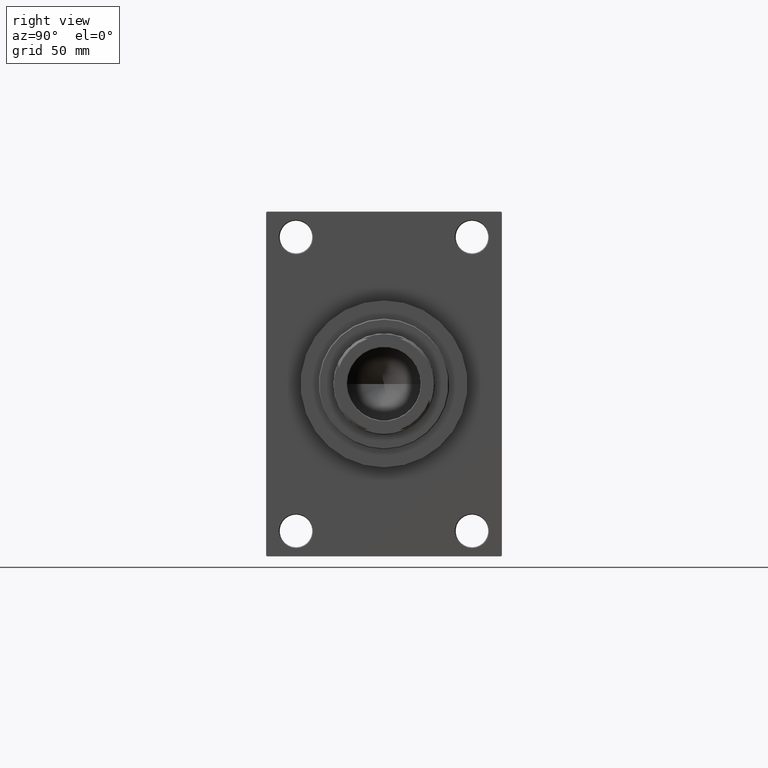
[diagram: clean part render]
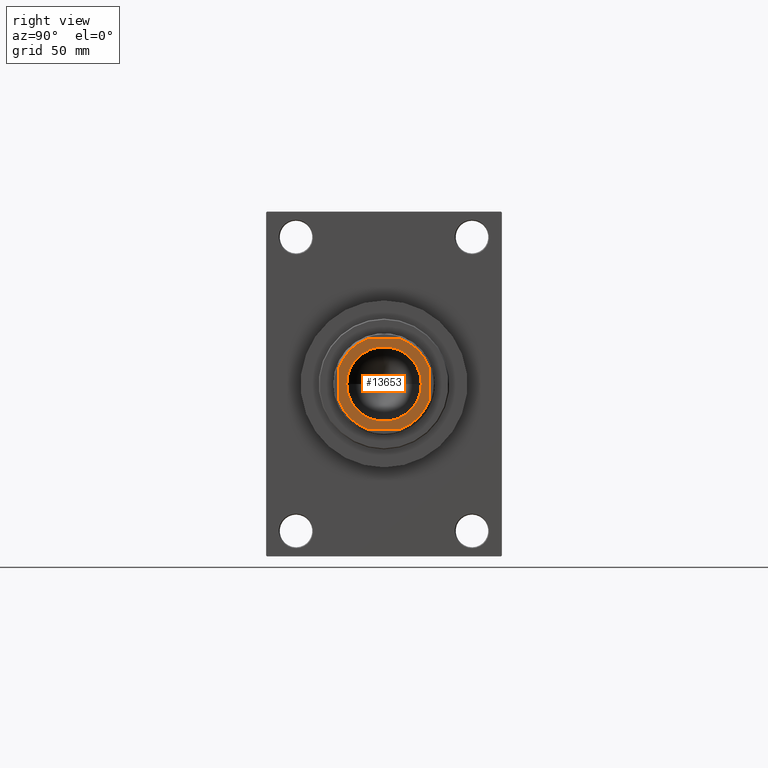
[diagram: same view with one face highlighted and labeled with its STEP entity id]
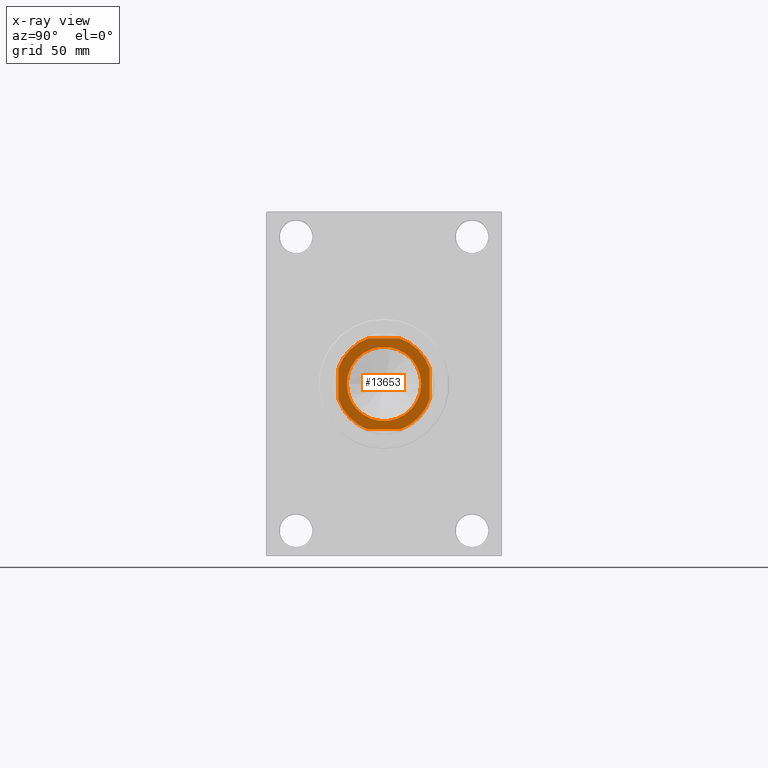
[diagram: x-ray of the same camera — body ghosted, the highlighted face saturated]
A machine part, right view. The second image highlights one B-rep face of the part: STEP entity #13653.
The next image is the same camera in x-ray: the body ghosted, the highlighted face saturated — about 0% of this face is hidden behind the body in this view.
In plain terms, the highlighted planar face has unit normal (1, 0, 0).
Its self-contained STEP definition (entity closure, byte-faithful):
#1585 = AXIS2_PLACEMENT_3D ( 'NONE', #1966, #1735, #16226 ) ;
#1735 = DIRECTION ( 'NONE',  ( -0.000000000000000000, 0.000000000000000000, 1.000000000000000000 ) ) ;
#1966 = CARTESIAN_POINT ( 'NONE',  ( 0.000000000000000000, 0.000000000000000000, 266.0000000000000000 ) ) ;
#2170 = AXIS2_PLACEMENT_3D ( 'NONE', #45956, #31232, #19672 ) ;
#2362 = EDGE_CURVE ( 'NONE', #45602, #10507, #44390, .T. ) ;
#2480 = EDGE_LOOP ( 'NONE', ( #21688, #21256 ) ) ;
#4115 = DIRECTION ( 'NONE',  ( -0.000000000000000000, 0.000000000000000000, 1.000000000000000000 ) ) ;
#4510 = CARTESIAN_POINT ( 'NONE',  ( 0.000000000000000000, 0.000000000000000000, 266.0000000000000000 ) ) ;
#5123 = FACE_BOUND ( 'NONE', #2480, .T. ) ;
#6009 = VERTEX_POINT ( 'NONE', #11253 ) ;
#6090 = CARTESIAN_POINT ( 'NONE',  ( -20.54999999999998650, 2.516649172247808793E-15, 266.0000000000000000 ) ) ;
#6460 = LINE ( 'NONE', #21421, #17349 ) ;
#6505 = CIRCLE ( 'NONE', #33477, 20.54999999999998650 ) ;
#6943 = DIRECTION ( 'NONE',  ( -1.000000000000000000, -0.000000000000000000, -0.000000000000000000 ) ) ;
#7085 = DIRECTION ( 'NONE',  ( 1.000000000000000000, 0.000000000000000000, 0.000000000000000000 ) ) ;
#7415 = VERTEX_POINT ( 'NONE', #23513 ) ;
#7453 = CARTESIAN_POINT ( 'NONE',  ( 0.000000000000000000, 0.000000000000000000, 266.0000000000000000 ) ) ;
#7748 = CARTESIAN_POINT ( 'NONE',  ( 0.000000000000000000, 0.000000000000000000, 266.0000000000000000 ) ) ;
#8834 = DIRECTION ( 'NONE',  ( 1.000000000000000000, 0.000000000000000000, 0.000000000000000000 ) ) ;
#8979 = FACE_OUTER_BOUND ( 'NONE', #24038, .T. ) ;
#10406 = DIRECTION ( 'NONE',  ( -0.000000000000000000, 0.000000000000000000, 1.000000000000000000 ) ) ;
#10507 = VERTEX_POINT ( 'NONE', #26362 ) ;
#11253 = CARTESIAN_POINT ( 'NONE',  ( 8.789197915623537583, -25.00000000000000000, 266.0000000000000000 ) ) ;
#11924 = EDGE_CURVE ( 'NONE', #7415, #40847, #31605, .T. ) ;
#12347 = VERTEX_POINT ( 'NONE', #18252 ) ;
#12562 = CIRCLE ( 'NONE', #41857, 20.54999999999998650 ) ;
#13653 = ADVANCED_FACE ( 'NONE', ( #5123, #8979 ), #20329, .T. ) ;
#13657 = ORIENTED_EDGE ( 'NONE', *, *, #18184, .T. ) ;
#14555 = DIRECTION ( 'NONE',  ( 0.000000000000000000, -0.000000000000000000, -1.000000000000000000 ) ) ;
#14576 = ORIENTED_EDGE ( 'NONE', *, *, #2362, .T. ) ;
#15614 = DIRECTION ( 'NONE',  ( 1.000000000000000000, 0.000000000000000000, 0.000000000000000000 ) ) ;
#16226 = DIRECTION ( 'NONE',  ( 1.000000000000000000, 0.000000000000000000, 0.000000000000000000 ) ) ;
#17349 = VECTOR ( 'NONE', #6943, 1000.000000000000000 ) ;
#17879 = ORIENTED_EDGE ( 'NONE', *, *, #46018, .T. ) ;
#18184 = EDGE_CURVE ( 'NONE', #27210, #45602, #41793, .T. ) ;
#18252 = CARTESIAN_POINT ( 'NONE',  ( 20.54999999999998650, 0.000000000000000000, 266.0000000000000000 ) ) ;
#19042 = DIRECTION ( 'NONE',  ( 1.387778780781445676E-16, -1.000000000000000000, 0.000000000000000000 ) ) ;
#19289 = CARTESIAN_POINT ( 'NONE',  ( -25.00000000000000000, 25.00000000000000000, 266.0000000000000000 ) ) ;
#19322 = EDGE_CURVE ( 'NONE', #21312, #6009, #31732, .T. ) ;
#19644 = CARTESIAN_POINT ( 'NONE',  ( -8.789197915623409685, 25.00000000000000000, 266.0000000000000000 ) ) ;
#19672 = DIRECTION ( 'NONE',  ( 1.000000000000000000, 0.000000000000000000, 0.000000000000000000 ) ) ;
#20167 = CARTESIAN_POINT ( 'NONE',  ( -24.99999999999999289, -25.00000000000000000, 266.0000000000000000 ) ) ;
#20329 = PLANE ( 'NONE',  #1585 ) ;
#20744 = CARTESIAN_POINT ( 'NONE',  ( 25.00000000000000000, 25.00000000000000000, 266.0000000000000000 ) ) ;
#20810 = CARTESIAN_POINT ( 'NONE',  ( 25.00000000000000355, 8.789197915623548241, 266.0000000000000000 ) ) ;
#20894 = VERTEX_POINT ( 'NONE', #25570 ) ;
#21256 = ORIENTED_EDGE ( 'NONE', *, *, #32139, .T. ) ;
#21312 = VERTEX_POINT ( 'NONE', #21397 ) ;
#21397 = CARTESIAN_POINT ( 'NONE',  ( -8.789197915623610413, -25.00000000000000000, 266.0000000000000000 ) ) ;
#21421 = CARTESIAN_POINT ( 'NONE',  ( -25.00000000000000000, 25.00000000000000000, 266.0000000000000000 ) ) ;
#21483 = AXIS2_PLACEMENT_3D ( 'NONE', #7748, #4115, #40097 ) ;
#21688 = ORIENTED_EDGE ( 'NONE', *, *, #25533, .T. ) ;
#21755 = DIRECTION ( 'NONE',  ( 1.000000000000000000, 0.000000000000000000, 0.000000000000000000 ) ) ;
#23513 = CARTESIAN_POINT ( 'NONE',  ( 25.00000000000000355, -8.789197915623526924, 266.0000000000000000 ) ) ;
#24038 = EDGE_LOOP ( 'NONE', ( #26725, #28501, #31645, #13657, #14576, #37019, #35389, #17879 ) ) ;
#24102 = VECTOR ( 'NONE', #8834, 1000.000000000000000 ) ;
#24537 = CIRCLE ( 'NONE', #2170, 26.50000000000002842 ) ;
#25264 = CIRCLE ( 'NONE', #44530, 26.50000000000004619 ) ;
#25533 = EDGE_CURVE ( 'NONE', #12347, #33296, #12562, .T. ) ;
#25570 = CARTESIAN_POINT ( 'NONE',  ( 8.789197915623548241, 25.00000000000000000, 266.0000000000000000 ) ) ;
#26362 = CARTESIAN_POINT ( 'NONE',  ( -24.99999999999999645, -8.789197915623628177, 266.0000000000000000 ) ) ;
#26725 = ORIENTED_EDGE ( 'NONE', *, *, #11924, .T. ) ;
#27141 = AXIS2_PLACEMENT_3D ( 'NONE', #43468, #10406, #21755 ) ;
#27210 = VERTEX_POINT ( 'NONE', #19644 ) ;
#27519 = VECTOR ( 'NONE', #19042, 1000.000000000000000 ) ;
#28501 = ORIENTED_EDGE ( 'NONE', *, *, #45440, .T. ) ;
#31232 = DIRECTION ( 'NONE',  ( -0.000000000000000000, 0.000000000000000000, 1.000000000000000000 ) ) ;
#31605 = LINE ( 'NONE', #20744, #41588 ) ;
#31645 = ORIENTED_EDGE ( 'NONE', *, *, #34042, .T. ) ;
#31732 = LINE ( 'NONE', #20167, #24102 ) ;
#32139 = EDGE_CURVE ( 'NONE', #33296, #12347, #6505, .T. ) ;
#32905 = CARTESIAN_POINT ( 'NONE',  ( -24.99999999999999645, 8.789197915623416790, 266.0000000000000000 ) ) ;
#33040 = DIRECTION ( 'NONE',  ( 1.000000000000000000, 0.000000000000000000, 0.000000000000000000 ) ) ;
#33296 = VERTEX_POINT ( 'NONE', #6090 ) ;
#33477 = AXIS2_PLACEMENT_3D ( 'NONE', #44716, #14555, #7085 ) ;
#33509 = DIRECTION ( 'NONE',  ( 0.000000000000000000, -0.000000000000000000, -1.000000000000000000 ) ) ;
#33816 = CIRCLE ( 'NONE', #21483, 26.50000000000002487 ) ;
#34042 = EDGE_CURVE ( 'NONE', #20894, #27210, #6460, .T. ) ;
#35389 = ORIENTED_EDGE ( 'NONE', *, *, #19322, .T. ) ;
#37019 = ORIENTED_EDGE ( 'NONE', *, *, #44122, .T. ) ;
#39564 = DIRECTION ( 'NONE',  ( -1.387778780781445676E-16, 1.000000000000000000, -0.000000000000000000 ) ) ;
#40097 = DIRECTION ( 'NONE',  ( 1.000000000000000000, 0.000000000000000000, 0.000000000000000000 ) ) ;
#40847 = VERTEX_POINT ( 'NONE', #20810 ) ;
#41588 = VECTOR ( 'NONE', #39564, 1000.000000000000000 ) ;
#41793 = CIRCLE ( 'NONE', #27141, 26.49999999999998224 ) ;
#41857 = AXIS2_PLACEMENT_3D ( 'NONE', #7453, #33509, #33040 ) ;
#43468 = CARTESIAN_POINT ( 'NONE',  ( 0.000000000000000000, 0.000000000000000000, 266.0000000000000000 ) ) ;
#44105 = DIRECTION ( 'NONE',  ( -0.000000000000000000, 0.000000000000000000, 1.000000000000000000 ) ) ;
#44122 = EDGE_CURVE ( 'NONE', #10507, #21312, #25264, .T. ) ;
#44390 = LINE ( 'NONE', #19289, #27519 ) ;
#44530 = AXIS2_PLACEMENT_3D ( 'NONE', #4510, #44105, #15614 ) ;
#44716 = CARTESIAN_POINT ( 'NONE',  ( 0.000000000000000000, 0.000000000000000000, 266.0000000000000000 ) ) ;
#45440 = EDGE_CURVE ( 'NONE', #40847, #20894, #24537, .T. ) ;
#45602 = VERTEX_POINT ( 'NONE', #32905 ) ;
#45956 = CARTESIAN_POINT ( 'NONE',  ( 0.000000000000000000, 0.000000000000000000, 266.0000000000000000 ) ) ;
#46018 = EDGE_CURVE ( 'NONE', #6009, #7415, #33816, .T. ) ;